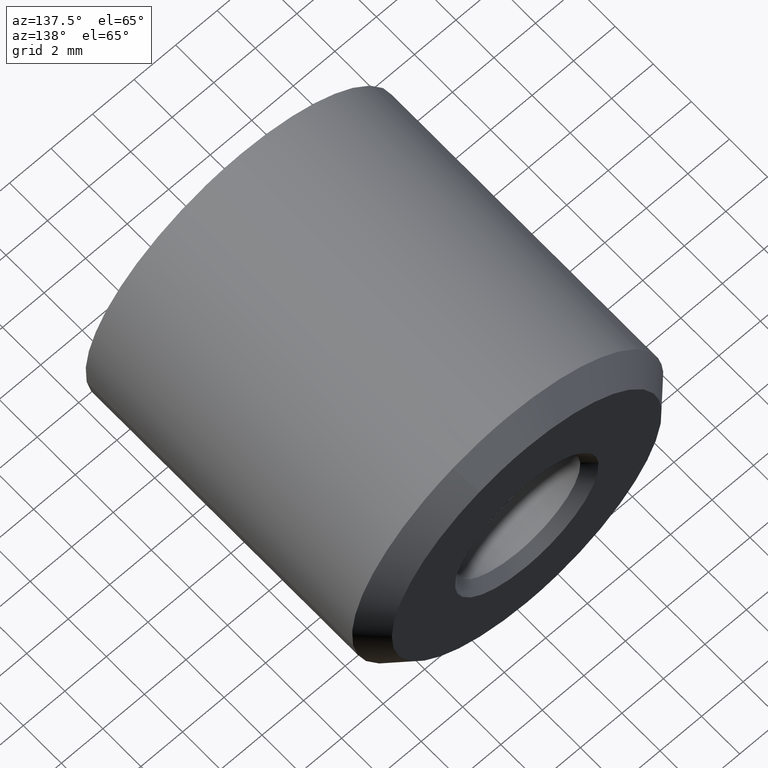
[diagram: clean part render]
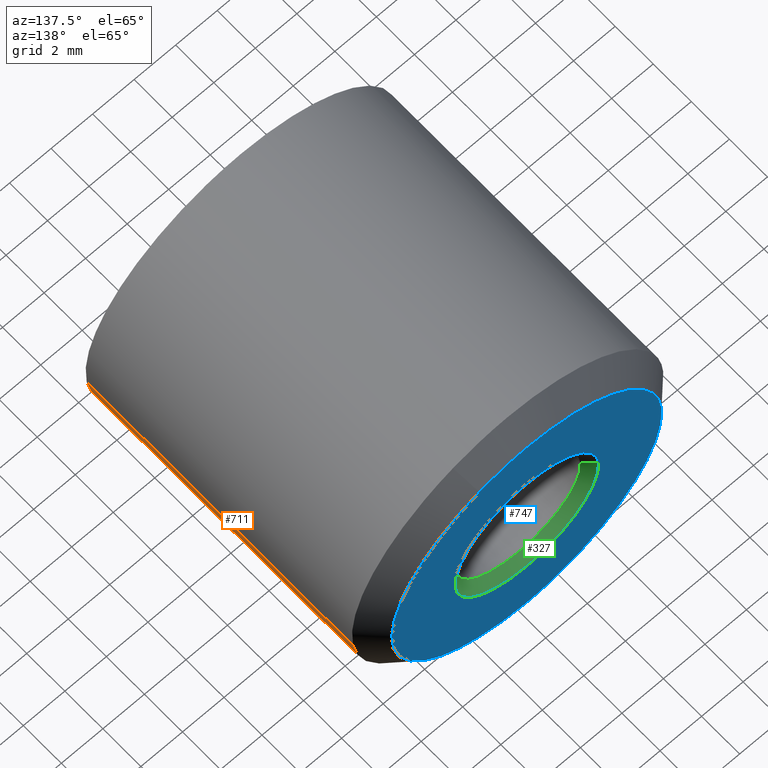
[diagram: same view with three faces highlighted in distinct colors, each labeled with its STEP entity id]
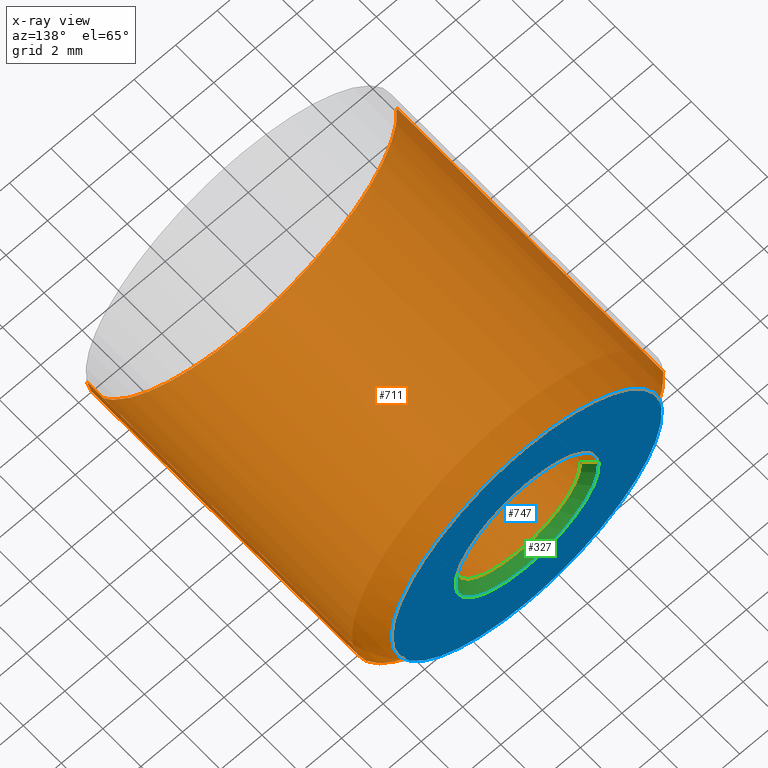
[diagram: x-ray of the same camera — body ghosted, the three highlighted faces saturated]
A machine part, auxiliary view with three faces highlighted in distinct colors.
The next image is the same camera in x-ray (body ghosted, the three faces saturated) — at least one of them is partly hidden behind the body in this view.
Their STEP definitions:

[orange] entity #711 — the highlighted face is a freeform B-spline surface patch.
#456=CARTESIAN_POINT('',(-7.486011067241073,14.000000001838769,0.457862723485314));
#457=VERTEX_POINT('',#456);
#501=CARTESIAN_POINT('',(7.447572004499123,14.0,-0.885252075839787));
#502=VERTEX_POINT('',#501);
#518=CARTESIAN_POINT('',(0.0,14.0,-7.500000000000000));
#519=VERTEX_POINT('',#518);
#520=CARTESIAN_POINT('',(0.0,14.0,-7.500000000000000));
#521=CARTESIAN_POINT('',(6.661313163702265,13.999999999999995,-7.499999999999999));
#522=CARTESIAN_POINT('',(7.447572004499123,14.000000000000004,-0.885252075839787));
#530=(BOUNDED_CURVE()B_SPLINE_CURVE(2,(#520,#521,#522),.UNSPECIFIED.,.F.,.U.)B_SPLINE_CURVE_WITH_KNOTS((3,3),(0.0,0.229562579808786),.UNSPECIFIED.)CURVE()GEOMETRIC_REPRESENTATION_ITEM()RATIONAL_B_SPLINE_CURVE((1.0,0.731050708322738,0.956026962526900))REPRESENTATION_ITEM(''));
#531=EDGE_CURVE('',#519,#502,#530,.T.);
#533=CARTESIAN_POINT('',(-7.486011067241073,14.000000001838764,0.457862723485314));
#534=CARTESIAN_POINT('',(-7.500000000000000,14.000000000000002,0.229145061427841));
#535=CARTESIAN_POINT('',(-7.500000000000000,14.0,-1.836910E-016));
#536=CARTESIAN_POINT('',(-7.500000000000000,13.999999999999998,-7.500000000000000));
#537=CARTESIAN_POINT('',(0.0,14.0,-7.500000000000000));
#545=(BOUNDED_CURVE()B_SPLINE_CURVE(2,(#533,#534,#535,#536,#537),.UNSPECIFIED.,.F.,.U.)B_SPLINE_CURVE_WITH_KNOTS((3,2,3),(0.739332992734115,0.750000000000000,1.0),.UNSPECIFIED.)CURVE()GEOMETRIC_REPRESENTATION_ITEM()RATIONAL_B_SPLINE_CURVE((0.976072107023685,0.987502823627153,1.0,0.707106781186547,1.0))REPRESENTATION_ITEM(''));
#546=EDGE_CURVE('',#457,#519,#545,.T.);
#607=CARTESIAN_POINT('',(7.447572011452393,1.611096E-015,-0.885252017342033));
#608=VERTEX_POINT('',#607);
#626=CARTESIAN_POINT('',(7.447572004499123,14.0,-0.885252075839787));
#627=CARTESIAN_POINT('',(7.447572011452393,1.611096E-015,-0.885252017342033));
#628=QUASI_UNIFORM_CURVE('',1,(#626,#627),.UNSPECIFIED.,.F.,.U.);
#629=EDGE_CURVE('',#502,#608,#628,.T.);
#634=CARTESIAN_POINT('',(-7.486011152008860,8.099600E-016,0.457861367655936));
#635=VERTEX_POINT('',#634);
#636=CARTESIAN_POINT('',(-7.486011067241073,14.000000001838769,0.457862723485314));
#637=CARTESIAN_POINT('',(-7.486011152008860,8.099600E-016,0.457861367655936));
#638=QUASI_UNIFORM_CURVE('',1,(#636,#637),.UNSPECIFIED.,.F.,.U.);
#639=EDGE_CURVE('',#457,#635,#638,.T.);
#657=CARTESIAN_POINT('',(-7.486010988164000,14.350000000000000,0.457864046511427));
#658=CARTESIAN_POINT('',(-7.943875034675429,14.350000000000003,-7.028146941652573));
#659=CARTESIAN_POINT('',(-0.457864046511427,14.350000000000000,-7.486010988164000));
#660=CARTESIAN_POINT('',(6.611576181296258,14.350000000000000,-7.918396475493956));
#661=CARTESIAN_POINT('',(7.447571447727496,14.350000000000001,-0.885256759925689));
#662=CARTESIAN_POINT('',(-7.486010988164000,-0.358750000000002,0.457864046511427));
#663=CARTESIAN_POINT('',(-7.943875034675429,-0.358750000000002,-7.028146941652573));
#664=CARTESIAN_POINT('',(-0.457864046511427,-0.358750000000002,-7.486010988164000));
#665=CARTESIAN_POINT('',(6.611576181296258,-0.358750000000002,-7.918396475493956));
#666=CARTESIAN_POINT('',(7.447571447727496,-0.358750000000002,-0.885256759925689));
#674=(BOUNDED_SURFACE()B_SPLINE_SURFACE(2,1,((#657,#662),(#658,#663),(#659,#664),(#660,#665),(#661,#666)),.UNSPECIFIED.,.F.,.F.,.U.)B_SPLINE_SURFACE_WITH_KNOTS((3,2,3),(2,2),(0.0,12.426406871192849,24.355757467537980),(0.0,14.708750000000000),.UNSPECIFIED.)GEOMETRIC_REPRESENTATION_ITEM()RATIONAL_B_SPLINE_SURFACE(((1.0,1.0),(0.707106781186548,0.707106781186548),(1.0,1.0),(0.718822509939086,0.718822509939086),(0.977505800795127,0.977505800795127)))REPRESENTATION_ITEM('')SURFACE());
#675=CARTESIAN_POINT('',(0.0,-1.377682E-015,-7.500000000000000));
#676=VERTEX_POINT('',#675);
#677=CARTESIAN_POINT('',(0.0,-1.377682E-015,-7.500000000000000));
#678=CARTESIAN_POINT('',(6.661313216392585,-1.377682E-015,-7.499999999999999));
#679=CARTESIAN_POINT('',(7.447572011452393,1.611096E-015,-0.885252017342033));
#687=(BOUNDED_CURVE()B_SPLINE_CURVE(2,(#677,#678,#679),.UNSPECIFIED.,.F.,.U.)B_SPLINE_CURVE_WITH_KNOTS((3,3),(0.0,0.229562581136241),.UNSPECIFIED.)CURVE()GEOMETRIC_REPRESENTATION_ITEM()RATIONAL_B_SPLINE_CURVE((1.0,0.731050706767529,0.956026965128767))REPRESENTATION_ITEM(''));
#688=EDGE_CURVE('',#676,#608,#687,.T.);
#689=ORIENTED_EDGE('',*,*,#688,.F.);
#690=CARTESIAN_POINT('',(-7.486011152008861,8.099600E-016,0.457861367655936));
#691=CARTESIAN_POINT('',(-7.500000000000000,-1.377682E-015,0.229144381556083));
#692=CARTESIAN_POINT('',(-7.500000000000000,-1.377682E-015,-1.836910E-016));
#693=CARTESIAN_POINT('',(-7.500000000000000,-1.377682E-015,-7.500000000000000));
#694=CARTESIAN_POINT('',(0.0,-1.377682E-015,-7.500000000000000));
#702=(BOUNDED_CURVE()B_SPLINE_CURVE(2,(#690,#691,#692,#693,#694),.UNSPECIFIED.,.F.,.U.)B_SPLINE_CURVE_WITH_KNOTS((3,2,3),(0.739333023987528,0.750000000000000,1.0),.UNSPECIFIED.)CURVE()GEOMETRIC_REPRESENTATION_ITEM()RATIONAL_B_SPLINE_CURVE((0.976072174005725,0.987502860242804,1.0,0.707106781186547,1.0))REPRESENTATION_ITEM(''));
#703=EDGE_CURVE('',#635,#676,#702,.T.);
#704=ORIENTED_EDGE('',*,*,#703,.F.);
#705=ORIENTED_EDGE('',*,*,#639,.F.);
#706=ORIENTED_EDGE('',*,*,#546,.T.);
#707=ORIENTED_EDGE('',*,*,#531,.T.);
#708=ORIENTED_EDGE('',*,*,#629,.T.);
#709=EDGE_LOOP('',(#689,#704,#705,#706,#707,#708));
#710=FACE_OUTER_BOUND('',#709,.T.);
#711=ADVANCED_FACE('',(#710),#674,.T.);

[blue] entity #747 — the highlighted face is a freeform B-spline surface patch.
#279=CARTESIAN_POINT('',(3.447838598717209,15.000000000002970,-0.271350782597566));
#280=VERTEX_POINT('',#279);
#286=CARTESIAN_POINT('',(0.0,15.0,-3.458500000000000));
#287=VERTEX_POINT('',#286);
#288=CARTESIAN_POINT('',(0.0,15.0,-3.458500000000000));
#289=CARTESIAN_POINT('',(3.197004515357907,15.000000000000004,-3.458500000000000));
#290=CARTESIAN_POINT('',(3.447838598717209,15.000000000002974,-0.271350782597566));
#298=(BOUNDED_CURVE()B_SPLINE_CURVE(2,(#288,#289,#290),.UNSPECIFIED.,.F.,.U.)B_SPLINE_CURVE_WITH_KNOTS((3,3),(0.0,0.236331300630522),.UNSPECIFIED.)CURVE()GEOMETRIC_REPRESENTATION_ITEM()RATIONAL_B_SPLINE_CURVE((1.0,0.723120658607827,0.969723356167130))REPRESENTATION_ITEM(''));
#299=EDGE_CURVE('',#287,#280,#298,.T.);
#301=CARTESIAN_POINT('',(-3.447838598717209,15.000000000002970,0.271350782597566));
#302=VERTEX_POINT('',#301);
#303=CARTESIAN_POINT('',(-3.447838598717209,15.000000000002975,0.271350782597566));
#304=CARTESIAN_POINT('',(-3.458500000000000,14.999999999999996,0.135884835108710));
#305=CARTESIAN_POINT('',(-3.458500000000000,15.0,-1.836910E-016));
#306=CARTESIAN_POINT('',(-3.458500000000001,14.999999999999996,-3.458500000000001));
#307=CARTESIAN_POINT('',(0.0,15.0,-3.458500000000000));
#315=(BOUNDED_CURVE()B_SPLINE_CURVE(2,(#303,#304,#305,#306,#307),.UNSPECIFIED.,.F.,.U.)B_SPLINE_CURVE_WITH_KNOTS((3,2,3),(0.736331300630522,0.750000000000000,1.0),.UNSPECIFIED.)CURVE()GEOMETRIC_REPRESENTATION_ITEM()RATIONAL_B_SPLINE_CURVE((0.969723356167130,0.983986122578720,1.0,0.707106781186547,1.0))REPRESENTATION_ITEM(''));
#316=EDGE_CURVE('',#302,#287,#315,.T.);
#350=CARTESIAN_POINT('',(0.0,15.0,3.458500000000000));
#351=VERTEX_POINT('',#350);
#352=CARTESIAN_POINT('',(0.0,15.0,3.458500000000000));
#353=CARTESIAN_POINT('',(-3.197004515357899,14.999999999999993,3.458500000000000));
#354=CARTESIAN_POINT('',(-3.447838598717209,15.000000000002977,0.271350782597566));
#362=(BOUNDED_CURVE()B_SPLINE_CURVE(2,(#352,#353,#354),.UNSPECIFIED.,.F.,.U.)B_SPLINE_CURVE_WITH_KNOTS((3,3),(0.500000000000000,0.736331300630521),.UNSPECIFIED.)CURVE()GEOMETRIC_REPRESENTATION_ITEM()RATIONAL_B_SPLINE_CURVE((1.0,0.723120658607828,0.969723356167129))REPRESENTATION_ITEM(''));
#363=EDGE_CURVE('',#351,#302,#362,.T.);
#365=CARTESIAN_POINT('',(3.447838598717209,15.000000000002977,-0.271350782597566));
#366=CARTESIAN_POINT('',(3.458500000000000,14.999999999999996,-0.135884835108711));
#367=CARTESIAN_POINT('',(3.458500000000000,15.0,-1.836910E-016));
#368=CARTESIAN_POINT('',(3.458500000000001,14.999999999999996,3.458500000000001));
#369=CARTESIAN_POINT('',(0.0,15.0,3.458500000000000));
#377=(BOUNDED_CURVE()B_SPLINE_CURVE(2,(#365,#366,#367,#368,#369),.UNSPECIFIED.,.F.,.U.)B_SPLINE_CURVE_WITH_KNOTS((3,2,3),(0.236331300630521,0.250000000000000,0.500000000000000),.UNSPECIFIED.)CURVE()GEOMETRIC_REPRESENTATION_ITEM()RATIONAL_B_SPLINE_CURVE((0.969723356167130,0.983986122578720,1.0,0.707106781186547,1.0))REPRESENTATION_ITEM(''));
#378=EDGE_CURVE('',#280,#351,#377,.T.);
#419=CARTESIAN_POINT('',(2.285516833551383,14.999999999999400,6.084933262046600));
#420=VERTEX_POINT('',#419);
#426=CARTESIAN_POINT('',(0.0,15.0,6.500000000000000));
#427=VERTEX_POINT('',#426);
#428=CARTESIAN_POINT('',(2.285516833551383,14.999999999999401,6.084933262046599));
#429=CARTESIAN_POINT('',(1.180448009440512,14.999999999999996,6.500000000000000));
#430=CARTESIAN_POINT('',(0.0,15.0,6.500000000000000));
#438=(BOUNDED_CURVE()B_SPLINE_CURVE(2,(#428,#429,#430),.UNSPECIFIED.,.F.,.U.)B_SPLINE_CURVE_WITH_KNOTS((3,3),(0.440284170898601,0.500000000000000),.UNSPECIFIED.)CURVE()GEOMETRIC_REPRESENTATION_ITEM()RATIONAL_B_SPLINE_CURVE((0.893499554635388,0.930038554401508,1.0))REPRESENTATION_ITEM(''));
#439=EDGE_CURVE('',#420,#427,#438,.T.);
#441=CARTESIAN_POINT('',(-6.487876189743293,14.999999999997840,0.396815506992970));
#442=VERTEX_POINT('',#441);
#443=CARTESIAN_POINT('',(0.0,15.0,6.500000000000000));
#444=CARTESIAN_POINT('',(-6.114589434856309,15.000000000000007,6.500000000000000));
#445=CARTESIAN_POINT('',(-6.487876189743293,14.999999999997849,0.396815506992970));
#453=(BOUNDED_CURVE()B_SPLINE_CURVE(2,(#443,#444,#445),.UNSPECIFIED.,.F.,.U.)B_SPLINE_CURVE_WITH_KNOTS((3,3),(0.500000000000000,0.739332962241103),.UNSPECIFIED.)CURVE()GEOMETRIC_REPRESENTATION_ITEM()RATIONAL_B_SPLINE_CURVE((1.0,0.719603993284179,0.976072041671348))REPRESENTATION_ITEM(''));
#454=EDGE_CURVE('',#427,#442,#453,.T.);
#549=CARTESIAN_POINT('',(0.0,15.0,-6.500000000000000));
#550=VERTEX_POINT('',#549);
#551=CARTESIAN_POINT('',(-6.487876189743293,14.999999999997838,0.396815506992970));
#552=CARTESIAN_POINT('',(-6.500000000000000,14.999999999999998,0.198592961457141));
#553=CARTESIAN_POINT('',(-6.500000000000000,15.0,-1.836910E-016));
#554=CARTESIAN_POINT('',(-6.500000000000000,14.999999999999996,-6.500000000000000));
#555=CARTESIAN_POINT('',(0.0,15.0,-6.500000000000000));
#563=(BOUNDED_CURVE()B_SPLINE_CURVE(2,(#551,#552,#553,#554,#555),.UNSPECIFIED.,.F.,.U.)B_SPLINE_CURVE_WITH_KNOTS((3,2,3),(0.739332962241103,0.750000000000000,1.0),.UNSPECIFIED.)CURVE()GEOMETRIC_REPRESENTATION_ITEM()RATIONAL_B_SPLINE_CURVE((0.976072041671347,0.987502787902368,1.0,0.707106781186547,1.0))REPRESENTATION_ITEM(''));
#564=EDGE_CURVE('',#442,#550,#563,.T.);
#566=CARTESIAN_POINT('',(0.0,15.0,-6.500000000000000));
#567=CARTESIAN_POINT('',(6.500000000000000,14.999999999999996,-6.500000000000000));
#568=CARTESIAN_POINT('',(6.500000000000000,15.0,-1.836910E-016));
#569=CARTESIAN_POINT('',(6.500000000000001,15.0,4.501962372004321));
#570=CARTESIAN_POINT('',(2.285516833551383,14.999999999999401,6.084933262046599));
#578=(BOUNDED_CURVE()B_SPLINE_CURVE(2,(#566,#567,#568,#569,#570),.UNSPECIFIED.,.F.,.U.)B_SPLINE_CURVE_WITH_KNOTS((3,2,3),(0.0,0.250000000000000,0.440284170898601),.UNSPECIFIED.)CURVE()GEOMETRIC_REPRESENTATION_ITEM()RATIONAL_B_SPLINE_CURVE((1.0,0.707106781186547,1.0,0.777068226785039,0.893499554635388))REPRESENTATION_ITEM(''));
#579=EDGE_CURVE('',#550,#420,#578,.T.);
#730=CARTESIAN_POINT('',(-7.149191782424748,15.0,-7.149349974803477));
#731=CARTESIAN_POINT('',(-7.149191782424748,15.0,7.149350323490650));
#732=CARTESIAN_POINT('',(7.149226883600057,15.0,-7.149349974803477));
#733=CARTESIAN_POINT('',(7.149226883600057,15.0,7.149350323490650));
#734=B_SPLINE_SURFACE_WITH_KNOTS('',1,1,((#730,#732),(#731,#733)),.UNSPECIFIED.,.F.,.F.,.U.,(2,2),(2,2),(0.0,14.298700298294129),(0.0,14.298418666024810),.UNSPECIFIED.);
#735=ORIENTED_EDGE('',*,*,#564,.F.);
#736=ORIENTED_EDGE('',*,*,#454,.F.);
#737=ORIENTED_EDGE('',*,*,#439,.F.);
#738=ORIENTED_EDGE('',*,*,#579,.F.);
#739=EDGE_LOOP('',(#735,#736,#737,#738));
#740=FACE_OUTER_BOUND('',#739,.T.);
#741=ORIENTED_EDGE('',*,*,#363,.T.);
#742=ORIENTED_EDGE('',*,*,#316,.T.);
#743=ORIENTED_EDGE('',*,*,#299,.T.);
#744=ORIENTED_EDGE('',*,*,#378,.T.);
#745=EDGE_LOOP('',(#741,#742,#743,#744));
#746=FACE_BOUND('',#745,.T.);
#747=ADVANCED_FACE('',(#740,#746),#734,.T.);

[green] entity #327 — the highlighted face is a freeform B-spline surface patch.
#116=CARTESIAN_POINT('',(-2.994404411156125,14.541499999999999,0.183145358796415));
#117=VERTEX_POINT('',#116);
#123=CARTESIAN_POINT('',(-2.990752001199405,14.541500000000060,0.235377287183957));
#124=VERTEX_POINT('',#123);
#125=CARTESIAN_POINT('',(-2.990752001199405,14.541500000000058,0.235377287183957));
#126=CARTESIAN_POINT('',(-2.992806128089515,14.541500000000001,0.209277130363528));
#127=CARTESIAN_POINT('',(-2.994404411156125,14.541499999999997,0.183145358796415));
#135=(BOUNDED_CURVE()B_SPLINE_CURVE(2,(#125,#126,#127),.UNSPECIFIED.,.F.,.U.)B_SPLINE_CURVE_WITH_KNOTS((3,3),(0.736331300632719,0.739332992183858),.UNSPECIFIED.)CURVE()GEOMETRIC_REPRESENTATION_ITEM()RATIONAL_B_SPLINE_CURVE((0.969723356171716,0.972855506808519,0.976072105844379))REPRESENTATION_ITEM(''));
#136=EDGE_CURVE('',#124,#117,#135,.T.);
#176=CARTESIAN_POINT('',(2.990752001199406,14.541500000000060,-0.235377287183957));
#177=VERTEX_POINT('',#176);
#193=CARTESIAN_POINT('',(0.0,14.541499999999999,-3.0));
#194=VERTEX_POINT('',#193);
#195=CARTESIAN_POINT('',(0.0,14.541499999999999,-3.0));
#196=CARTESIAN_POINT('',(2.773171474973844,14.541500000000008,-3.000000000000001));
#197=CARTESIAN_POINT('',(2.990752001199405,14.541500000000060,-0.235377287183957));
#205=(BOUNDED_CURVE()B_SPLINE_CURVE(2,(#195,#196,#197),.UNSPECIFIED.,.F.,.U.)B_SPLINE_CURVE_WITH_KNOTS((3,3),(0.0,0.236331300632719),.UNSPECIFIED.)CURVE()GEOMETRIC_REPRESENTATION_ITEM()RATIONAL_B_SPLINE_CURVE((1.0,0.723120658605253,0.969723356171716))REPRESENTATION_ITEM(''));
#206=EDGE_CURVE('',#194,#177,#205,.T.);
#208=CARTESIAN_POINT('',(-2.994404411156126,14.541500000000005,0.183145358796415));
#209=CARTESIAN_POINT('',(-3.000000000000000,14.541499999999997,0.091658029359136));
#210=CARTESIAN_POINT('',(-3.0,14.541499999999999,-1.836910E-016));
#211=CARTESIAN_POINT('',(-3.0,14.541499999999999,-3.0));
#212=CARTESIAN_POINT('',(0.0,14.541499999999999,-3.0));
#220=(BOUNDED_CURVE()B_SPLINE_CURVE(2,(#208,#209,#210,#211,#212),.UNSPECIFIED.,.F.,.U.)B_SPLINE_CURVE_WITH_KNOTS((3,2,3),(0.739332992183859,0.750000000000000,1.0),.UNSPECIFIED.)CURVE()GEOMETRIC_REPRESENTATION_ITEM()RATIONAL_B_SPLINE_CURVE((0.976072105844382,0.987502822982489,1.0,0.707106781186548,1.0))REPRESENTATION_ITEM(''));
#221=EDGE_CURVE('',#117,#194,#220,.T.);
#260=CARTESIAN_POINT('',(2.979324836261466,14.530037500000001,-0.234477949798756));
#261=CARTESIAN_POINT('',(2.744846886462710,14.530037500000001,-3.213802786060223));
#262=CARTESIAN_POINT('',(-0.234477949798756,14.530037500000001,-2.979324836261466));
#263=CARTESIAN_POINT('',(-3.213802786060223,14.530037500000001,-2.744846886462710));
#264=CARTESIAN_POINT('',(-2.979324836261466,14.530037500000001,0.234477949798756));
#265=CARTESIAN_POINT('',(3.459551442777388,15.011749062500000,-0.272272603394154));
#266=CARTESIAN_POINT('',(3.187278839383233,15.011749062500003,-3.731824046171542));
#267=CARTESIAN_POINT('',(-0.272272603394154,15.011749062500000,-3.459551442777388));
#268=CARTESIAN_POINT('',(-3.731824046171542,15.011749062500003,-3.187278839383233));
#269=CARTESIAN_POINT('',(-3.459551442777388,15.011749062500000,0.272272603394154));
#277=(BOUNDED_SURFACE()B_SPLINE_SURFACE(2,1,((#260,#265),(#261,#266),(#262,#267),(#263,#268),(#264,#269)),.UNSPECIFIED.,.F.,.F.,.U.)B_SPLINE_SURFACE_WITH_KNOTS((3,2,3),(2,2),(0.0,5.749696906000075,11.499393812000150),(0.0,1.0),.UNSPECIFIED.)GEOMETRIC_REPRESENTATION_ITEM()RATIONAL_B_SPLINE_SURFACE(((1.0,1.0),(0.707106781186548,0.707106781186548),(1.0,1.0),(0.707106781186548,0.707106781186548),(1.0,1.0)))REPRESENTATION_ITEM('')SURFACE());
#278=ORIENTED_EDGE('',*,*,#206,.T.);
#279=CARTESIAN_POINT('',(3.447838598717209,15.000000000002970,-0.271350782597566));
#280=VERTEX_POINT('',#279);
#281=CARTESIAN_POINT('',(2.990752001199406,14.541500000000060,-0.235377287183957));
#282=CARTESIAN_POINT('',(3.447838598717209,15.000000000002970,-0.271350782597566));
#283=QUASI_UNIFORM_CURVE('',1,(#281,#282),.UNSPECIFIED.,.F.,.U.);
#284=EDGE_CURVE('',#177,#280,#283,.T.);
#285=ORIENTED_EDGE('',*,*,#284,.T.);
#286=CARTESIAN_POINT('',(0.0,15.0,-3.458500000000000));
#287=VERTEX_POINT('',#286);
#288=CARTESIAN_POINT('',(0.0,15.0,-3.458500000000000));
#289=CARTESIAN_POINT('',(3.197004515357907,15.000000000000004,-3.458500000000000));
#290=CARTESIAN_POINT('',(3.447838598717209,15.000000000002974,-0.271350782597566));
#298=(BOUNDED_CURVE()B_SPLINE_CURVE(2,(#288,#289,#290),.UNSPECIFIED.,.F.,.U.)B_SPLINE_CURVE_WITH_KNOTS((3,3),(0.0,0.236331300630522),.UNSPECIFIED.)CURVE()GEOMETRIC_REPRESENTATION_ITEM()RATIONAL_B_SPLINE_CURVE((1.0,0.723120658607827,0.969723356167130))REPRESENTATION_ITEM(''));
#299=EDGE_CURVE('',#287,#280,#298,.T.);
#300=ORIENTED_EDGE('',*,*,#299,.F.);
#301=CARTESIAN_POINT('',(-3.447838598717209,15.000000000002970,0.271350782597566));
#302=VERTEX_POINT('',#301);
#303=CARTESIAN_POINT('',(-3.447838598717209,15.000000000002975,0.271350782597566));
#304=CARTESIAN_POINT('',(-3.458500000000000,14.999999999999996,0.135884835108710));
#305=CARTESIAN_POINT('',(-3.458500000000000,15.0,-1.836910E-016));
#306=CARTESIAN_POINT('',(-3.458500000000001,14.999999999999996,-3.458500000000001));
#307=CARTESIAN_POINT('',(0.0,15.0,-3.458500000000000));
#315=(BOUNDED_CURVE()B_SPLINE_CURVE(2,(#303,#304,#305,#306,#307),.UNSPECIFIED.,.F.,.U.)B_SPLINE_CURVE_WITH_KNOTS((3,2,3),(0.736331300630522,0.750000000000000,1.0),.UNSPECIFIED.)CURVE()GEOMETRIC_REPRESENTATION_ITEM()RATIONAL_B_SPLINE_CURVE((0.969723356167130,0.983986122578720,1.0,0.707106781186547,1.0))REPRESENTATION_ITEM(''));
#316=EDGE_CURVE('',#302,#287,#315,.T.);
#317=ORIENTED_EDGE('',*,*,#316,.F.);
#318=CARTESIAN_POINT('',(-2.990752001199405,14.541500000000060,0.235377287183957));
#319=CARTESIAN_POINT('',(-3.447838598717209,15.000000000002970,0.271350782597566));
#320=QUASI_UNIFORM_CURVE('',1,(#318,#319),.UNSPECIFIED.,.F.,.U.);
#321=EDGE_CURVE('',#124,#302,#320,.T.);
#322=ORIENTED_EDGE('',*,*,#321,.F.);
#323=ORIENTED_EDGE('',*,*,#136,.T.);
#324=ORIENTED_EDGE('',*,*,#221,.T.);
#325=EDGE_LOOP('',(#278,#285,#300,#317,#322,#323,#324));
#326=FACE_OUTER_BOUND('',#325,.T.);
#327=ADVANCED_FACE('',(#326),#277,.F.);